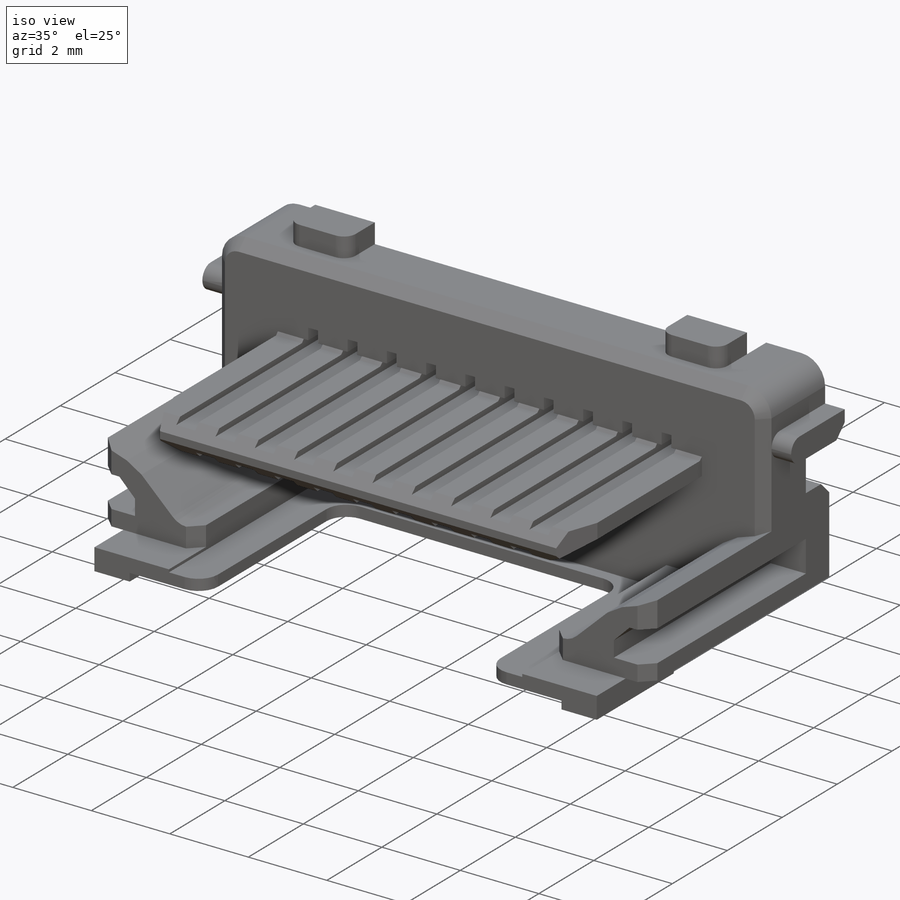
[diagram: iso view]
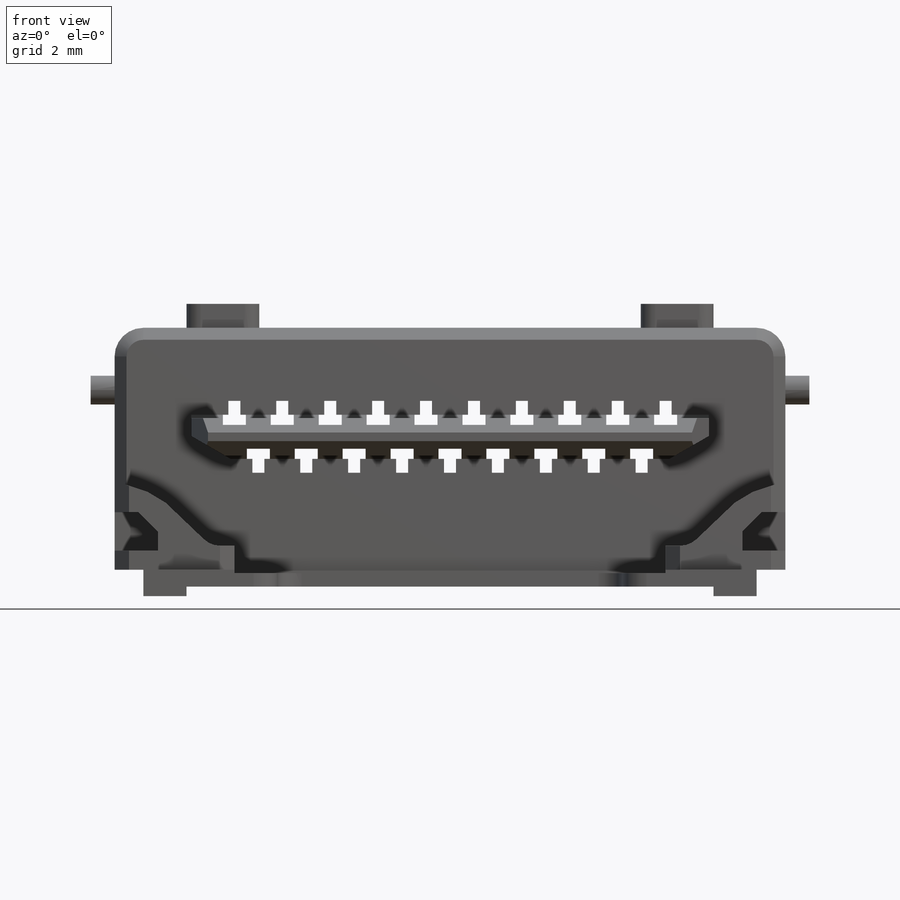
[diagram: front view]
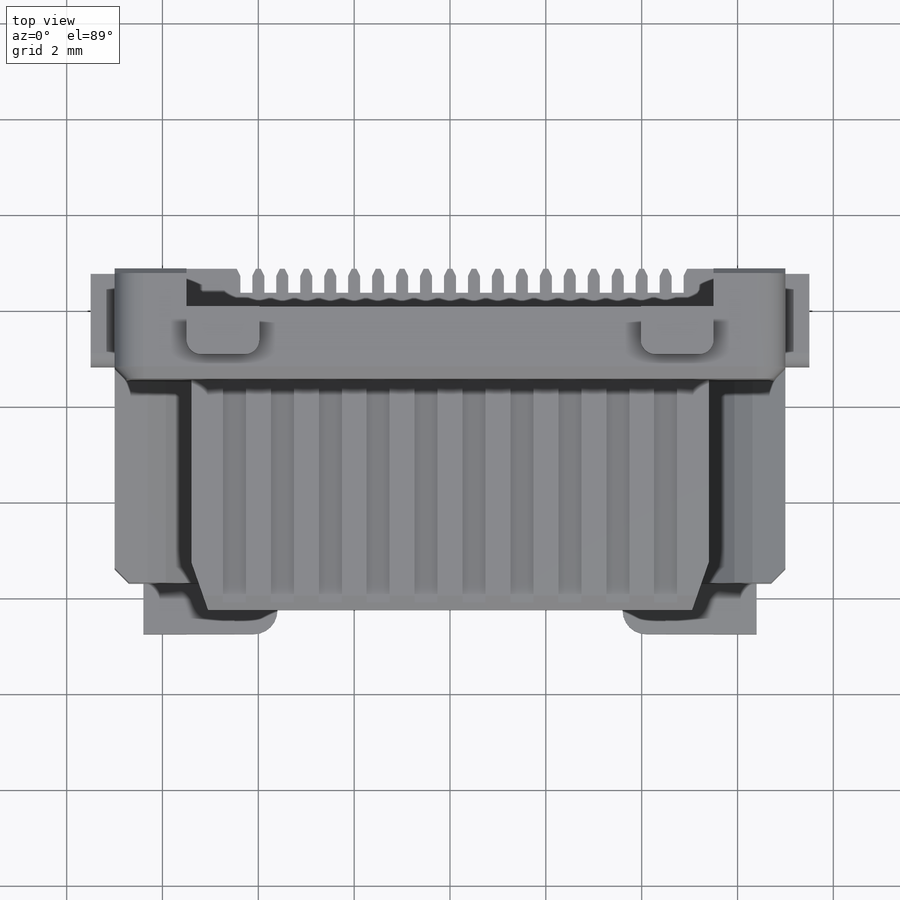
[diagram: top view]
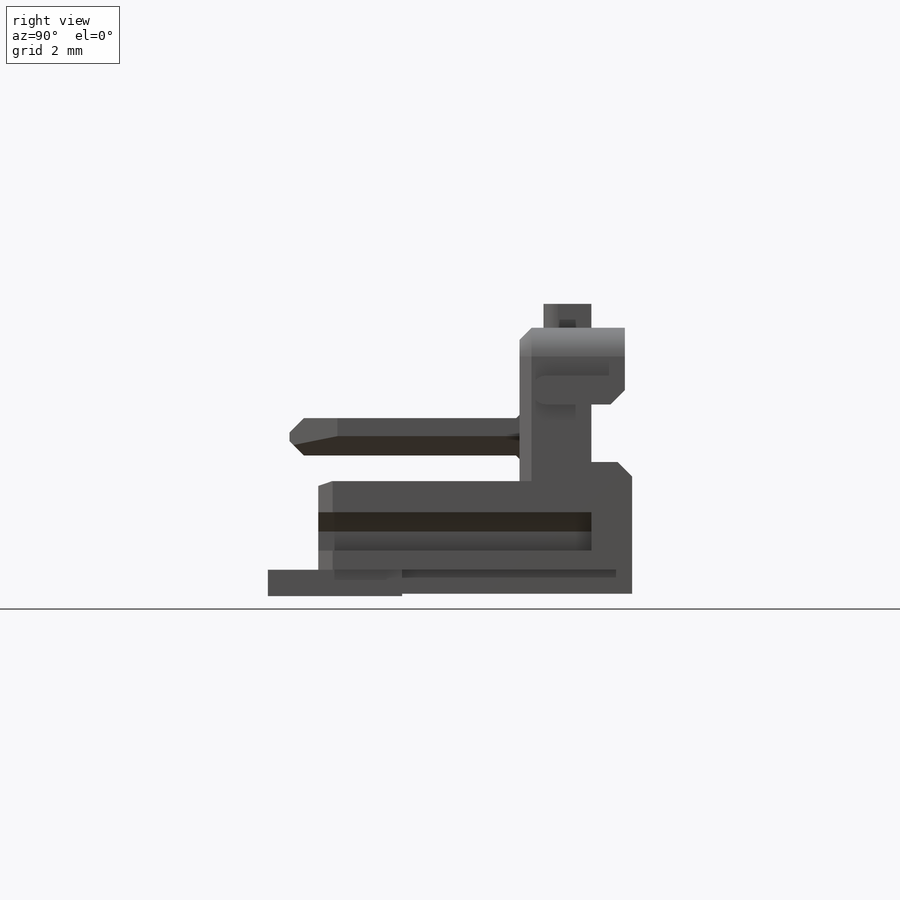
[diagram: right view]
SOLIDWORKS PART (.sldprt)
format: sldprt  version: not decoded by parser v0  size: 1,284,096 bytes
history: native  units: mm
features: sketch x21, cut_extrude x15, chamfer x10, pattern_linear x7, extrude x6, mirror x2, material x1, plane x1, fillet x1 (+12 scaffold rows collapsed)
feature tree (76):
  scaffold x12  (default folders/planes/origin — collapsed)
  material  "Material <not specified>"
  sketch  "Esboço1"  dims[c1.D3=0.6mm c1.D1=14.0mm c1.D2=5.55mm c2.D3=0.0mm c2.D4=0.0mm]
  extrude  "Ressalto-extrusão1"  Depth=5.7mm
  sketch  "Esboço2"  dims[D1=1.6mm D2=1.2mm D3=11.0mm D4=0.72mm D5=5.5mm D6=0.15mm]
  cut_extrude  "Corte-extrusão1"  Depth=0.85mm
  sketch  "Esboço3"
  cut_extrude  "Corte-extrusão2"  Depth=0.15mm
  chamfer  "Chanfro1"  Distance=0.3mm Angle=45deg
  sketch  "Esboço4"  dims[D1=0.6mm D2=1.95mm]
  extrude  "Ressalto-extrusão2"  Depth=0.5mm
  plane  "Plano1"
  sketch  "Esboço5"  dims[D3=0.3mm D1=1.0mm D2=1.52mm]
  extrude  "Ressalto-extrusão3"  Depth=0.5mm
  sketch  "Esboço7"  dims[D1=1.1mm D2=0.5mm D3=0.8mm D4=1.5mm]
  cut_extrude  "Corte-extrusão4"  Depth=12mm
  sketch  "Esboço12"  dims[D1=0.4mm D2=0.8mm D3=0.9mm D4=0.4mm D5=0.5mm]
  cut_extrude  "Corte-extrusão8"  Depth=5.7mm
  mirror  "Espelhar1"
  sketch  "Esboço6"  dims[D1=0.25mm D2=0.5mm D3=0.625mm D4=0.075mm D5=0.15mm D6=0.075mm D7=0.15mm]
  cut_extrude  "Corte-extrusão3"  Depth=2mm
  pattern_linear  "Padrão linear1"  Count1=19 Count2=1 Spacing1=0.5mm Spacing2=10mm
  sketch  "Esboço10"  dims[D1=0.15mm]
  cut_extrude  "Corte-extrusão6"  Depth=12mm
  sketch  "Esboço11"  dims[D16=0.5mm D23=0.5mm D1=3.2mm D2=9.0mm D3=4.5mm D4=4.55mm D5=5.12mm D6=0.6877mm D7=0.2292mm D8=0.6877mm D9=0.2292mm D10=0.3742mm D11=0.2253mm D12=0.7932mm D13=0.7571mm D14=0.3451mm D15=0.1383mm D17=0.3742mm D18=0.2253mm D19=0.7932mm D20=0.7571mm D21=0.3451mm D22=0.1383mm]
  cut_extrude  "Corte-extrusão7"  Depth=4.2mm
  chamfer  "Chanfro2"  Distance=0.25mm Angle=45deg
  chamfer  "Chanfro3"  Distance=0.3mm Angle=45deg
  sketch  "Esboço13"  dims[D1=2.8mm D2=0.9mm D3=1.05mm D4=0.9mm]
  extrude  "Ressalto-extrusão4"  Depth=0.55mm
  sketch  "Esboço14"  dims[D1=1.9mm]
  extrude  "Ressalto-extrusão5"  Depth=1.05mm
  sketch  "Esboço15"  dims[D3=0.5mm D1=7.2mm D2=3.9mm]
  cut_extrude  "Corte-extrusão9"  Depth=2mm
  mirror  "Espelhar2"
  fillet  "Filete1"  Radius=0.5mm
  chamfer  "Chanfro4"  Distance=0.3mm Angle=45deg
  sketch  "Esboço16"  dims[D1=1.885mm D2=0.78mm D3=10.8mm D4=5.4mm D5=0.3759mm D6=0.3759mm D7=0.7mm D8=0.7mm]
  extrude  "Ressalto-extrusão6"  Depth=4.8mm
  sketch  "Esboço17"  dims[D1=1.0mm D2=0.0mm D3=1.0mm D4=0.35mm D5=0.0mm D6=0.0mm D7=1.0mm D8=0.35mm]
  cut_extrude  "Corte-extrusão10"  Depth=1mm
  chamfer  "Chanfro5"  Distance=0.3mm Angle=45deg
  chamfer  "Chanfro6"  Distance=0.07mm Angle=45deg
  sketch  "Esboço18"  dims[D1=0.21mm D2=0.29mm D3=0.25mm D4=0.48mm D5=0.115mm D6=1.525mm D7=2.26mm]
  cut_extrude  "Corte-extrusão11"  Depth=3mm
  pattern_linear  "Padrão linear2"  Count1=10 Count2=1 Spacing1=1mm Spacing2=10mm
  sketch  "Esboço19"  dims[D1=0.48mm D2=0.25mm D3=0.115mm D4=0.21mm D5=0.29mm D6=2.525mm D7=0.02mm]
  cut_extrude  "Corte-extrusão12"  Depth=3mm
  pattern_linear  "Padrão linear3"  Count1=9 Count2=1 Spacing1=1mm Spacing2=10mm
  sketch  "Esboço20"  dims[D1=0.67mm D2=0.12mm]
  cut_extrude  "Corte-extrusão13"  Depth=0.65mm
  pattern_linear  "Padrão linear6"  Count1=10 Count2=1 Spacing1=1mm Spacing2=10mm
  chamfer  "Chanfro7"  Distance=0.12mm Angle=67deg
  chamfer  "Chanfro8"  Distance=0.07mm Angle=67deg
  sketch  "Esboço21"  dims[D1=0.12mm D2=0.67mm]
  cut_extrude  "Corte-extrusão14"  Depth=0.65mm
  pattern_linear  "Padrão linear8"  Count1=9 Count2=1 Spacing1=1mm Spacing2=10mm
  chamfer  "Chanfro9"  Distance=0.12mm Angle=67deg
  chamfer  "Chanfro10"  Distance=0.07mm Angle=67deg
  sketch  "Esboço22"
  cut_extrude  "Corte-extrusão15"  Depth=0.2mm
  pattern_linear  "Padrão linear9"  Count1=10 Count2=1 Spacing1=1mm Spacing2=10mm
  sketch  "Esboço23"
  cut_extrude  "Corte-extrusão16"  Depth=0.2mm
  pattern_linear  "Padrão linear10"  Count1=9 Count2=1 Spacing1=1mm Spacing2=10mm
decode coverage: 57 of 62 modeling features carry decoded parameters
note: suppression state not decoded; provenance and decode notes live in map.json
